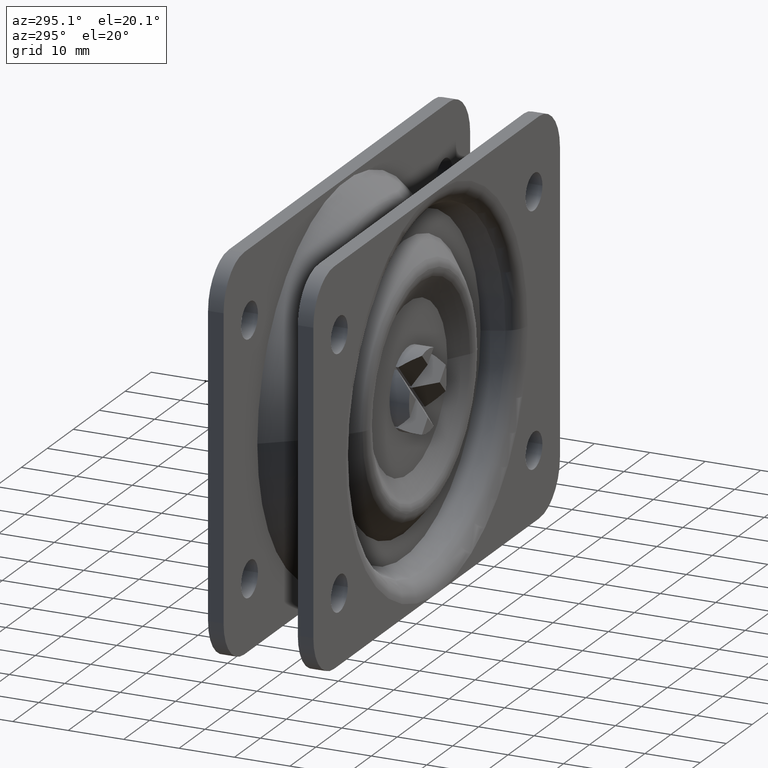
[diagram: clean part render]
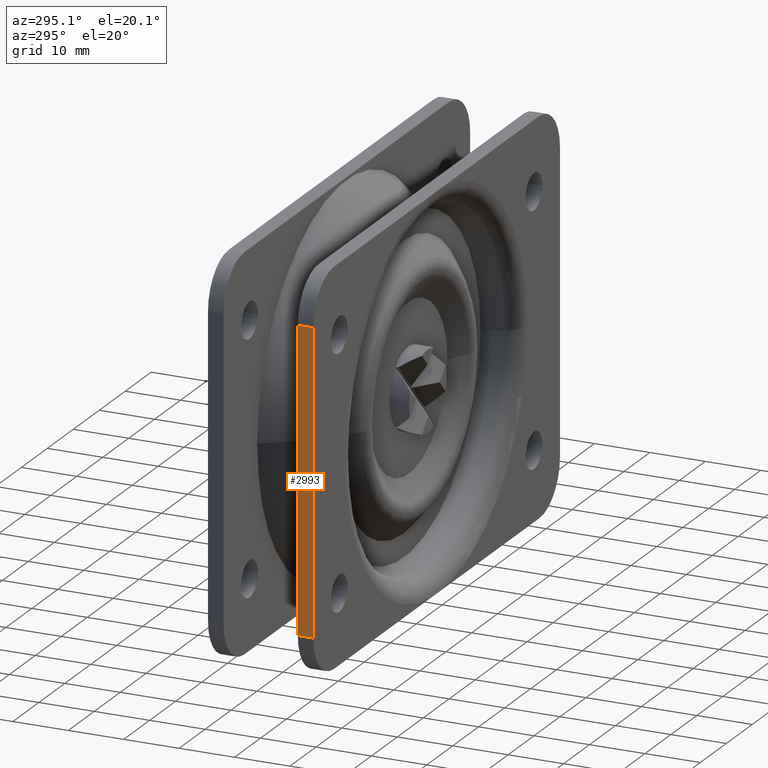
[diagram: same view with one face highlighted and labeled with its STEP entity id]
A machine part, auxiliary view. The second image highlights one B-rep face of the part: STEP entity #2993.
In plain terms, the highlighted planar face has unit normal (-1, 0, 0).
Its self-contained STEP definition (entity closure, byte-faithful):
#148 = DIRECTION ( 'NONE',  ( -1.000000000000000000, 0.0000000000000000000, 0.0000000000000000000 ) ) ;
#481 = DIRECTION ( 'NONE',  ( 0.0000000000000000000, -1.000000000000000000, 0.0000000000000000000 ) ) ;
#646 = EDGE_CURVE ( 'NONE', #1673, #975, #3844, .T. ) ;
#684 = CARTESIAN_POINT ( 'NONE',  ( -47.50000000000000000, -19.00000000000000355, 27.00000000000000000 ) ) ;
#699 = CARTESIAN_POINT ( 'NONE',  ( -47.50000000000000000, -16.20000000000000284, -27.00000000000000711 ) ) ;
#752 = LINE ( 'NONE', #699, #3153 ) ;
#831 = VECTOR ( 'NONE', #2569, 1000.000000000000000 ) ;
#845 = PLANE ( 'NONE',  #2945 ) ;
#870 = CARTESIAN_POINT ( 'NONE',  ( -47.50000000000000000, -16.20000000000000284, 27.00000000000000000 ) ) ;
#975 = VERTEX_POINT ( 'NONE', #684 ) ;
#1095 = CARTESIAN_POINT ( 'NONE',  ( -47.50000000000000000, -16.20000000000000284, 27.00000000000000000 ) ) ;
#1108 = DIRECTION ( 'NONE',  ( 0.0000000000000000000, 0.0000000000000000000, -1.000000000000000000 ) ) ;
#1364 = EDGE_LOOP ( 'NONE', ( #4227, #3953, #1954, #1651 ) ) ;
#1402 = CARTESIAN_POINT ( 'NONE',  ( -47.50000000000000000, -19.00000000000000355, -27.00000000000000711 ) ) ;
#1442 = VECTOR ( 'NONE', #1108, 1000.000000000000000 ) ;
#1459 = CARTESIAN_POINT ( 'NONE',  ( -47.50000000000000000, -16.20000000000000284, -27.00000000000000711 ) ) ;
#1639 = CARTESIAN_POINT ( 'NONE',  ( -47.50000000000000000, -19.00000000000000355, -27.00000000000000711 ) ) ;
#1651 = ORIENTED_EDGE ( 'NONE', *, *, #2764, .T. ) ;
#1673 = VERTEX_POINT ( 'NONE', #1095 ) ;
#1954 = ORIENTED_EDGE ( 'NONE', *, *, #3452, .T. ) ;
#2267 = VERTEX_POINT ( 'NONE', #2645 ) ;
#2415 = LINE ( 'NONE', #1402, #1442 ) ;
#2569 = DIRECTION ( 'NONE',  ( 0.0000000000000000000, 0.0000000000000000000, -1.000000000000000000 ) ) ;
#2645 = CARTESIAN_POINT ( 'NONE',  ( -47.50000000000000000, -16.20000000000000284, -27.00000000000000711 ) ) ;
#2764 = EDGE_CURVE ( 'NONE', #2267, #3708, #752, .T. ) ;
#2945 = AXIS2_PLACEMENT_3D ( 'NONE', #4259, #148, #3124 ) ;
#2975 = DIRECTION ( 'NONE',  ( 0.0000000000000000000, -1.000000000000000000, 0.0000000000000000000 ) ) ;
#2993 = ADVANCED_FACE ( 'NONE', ( #4105 ), #845, .T. ) ;
#3124 = DIRECTION ( 'NONE',  ( 0.0000000000000000000, 1.000000000000000000, -0.0000000000000000000 ) ) ;
#3153 = VECTOR ( 'NONE', #2975, 1000.000000000000000 ) ;
#3452 = EDGE_CURVE ( 'NONE', #1673, #2267, #4131, .T. ) ;
#3708 = VERTEX_POINT ( 'NONE', #1639 ) ;
#3844 = LINE ( 'NONE', #870, #4602 ) ;
#3953 = ORIENTED_EDGE ( 'NONE', *, *, #646, .F. ) ;
#4105 = FACE_OUTER_BOUND ( 'NONE', #1364, .T. ) ;
#4131 = LINE ( 'NONE', #1459, #831 ) ;
#4227 = ORIENTED_EDGE ( 'NONE', *, *, #4352, .F. ) ;
#4259 = CARTESIAN_POINT ( 'NONE',  ( -47.50000000000000000, -16.20000000000000284, -27.00000000000000711 ) ) ;
#4352 = EDGE_CURVE ( 'NONE', #975, #3708, #2415, .T. ) ;
#4602 = VECTOR ( 'NONE', #481, 1000.000000000000000 ) ;